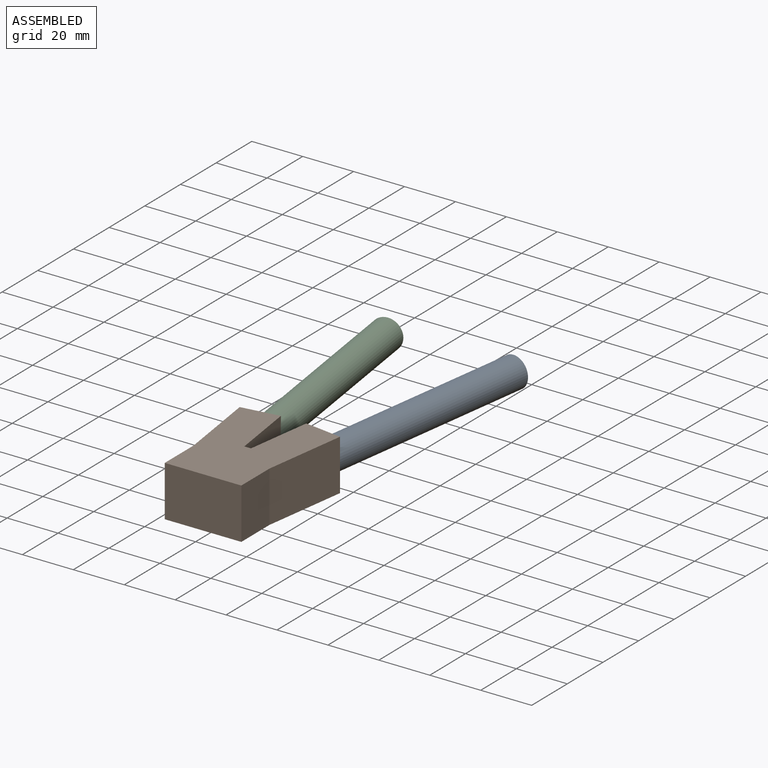
[diagram: assembled view]
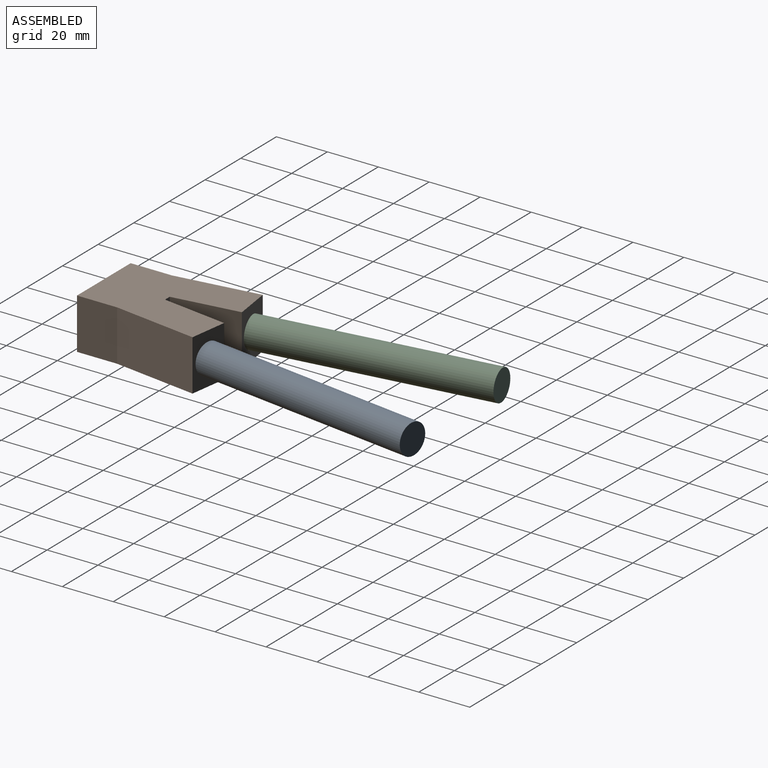
[diagram: assembled view, second angle]
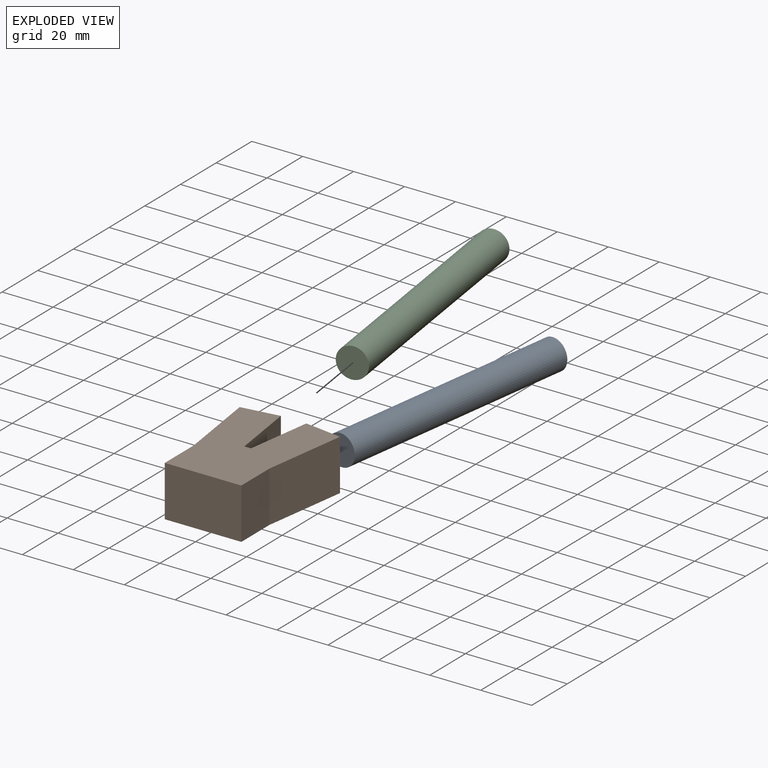
[diagram: exploded view]
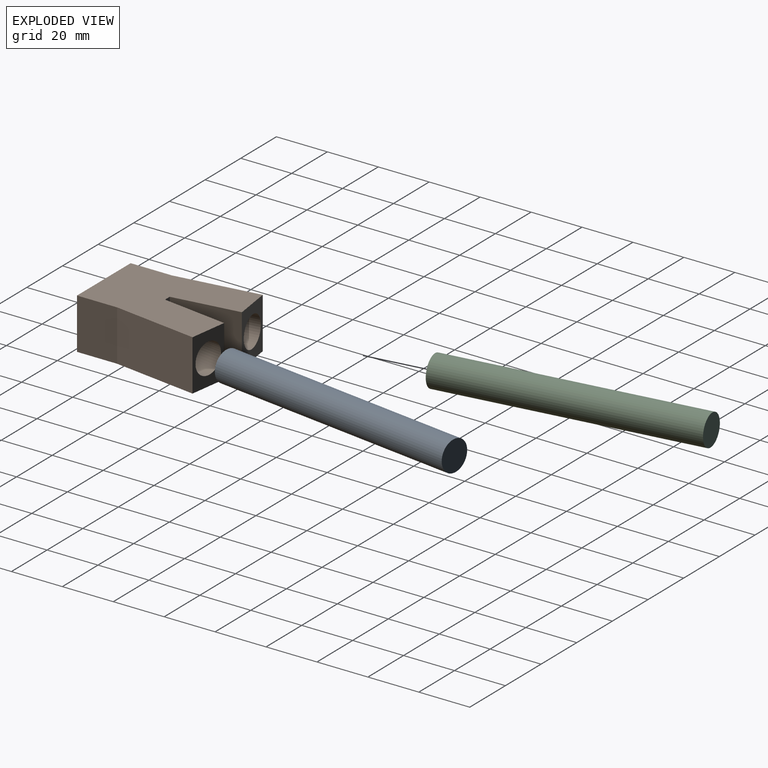
[diagram: exploded view, second angle]
ASSEMBLY  parts=3 mates=2
PART A: 3 faces, bbox 12x12x100 mm
  f0: cylinder r=6mm len=100mm, axis (0,0,-1), area 3769.9mm2, adj f1,f2
  f1: plane 12x12mm, normal (0,0,1), area 113.1mm2, adj f0
  f2: plane 12x12mm, normal (0,0,-1), area 113.1mm2, adj f0
PART B: 17 faces, bbox 39.4x50.7x20 mm
  f0: plane 20x14.7mm, normal (0.14,0.99,0), area 183.9mm2, adj f1,f10,f11,f12,f15
  f1: plane 25.78x20mm, normal (-0.99,0.14,0), area 520.9mm2, adj f0,f2,f11,f12
  f2: plane 20x2.63mm, normal (0,1,0), area 52.7mm2, adj f1,f3,f11,f12
  f3: plane 25.78x20mm, normal (0.99,0.14,0), area 520.9mm2, adj f2,f4,f11,f12
  f4: plane 20x14.7mm, normal (-0.14,0.99,0), area 181.9mm2, adj f3,f5,f11,f12,f13
  f5: plane 32.9x20mm, normal (-0.99,-0.14,0), area 664.7mm2, adj f4,f6,f11,f12
  f6: plane 20x0.07mm, normal (0,1,0), area 1.4mm2, adj f5,f7,f11,f12
  f7: plane 20x15.75mm, normal (-1,0,0), area 315mm2, adj f6,f8,f11,f12
  f8: plane 30.07x20mm, normal (0,-1,0), area 601.4mm2, adj f7,f9,f11,f12
  f9: plane 20x15.75mm, normal (1,0,0), area 315mm2, adj f8,f10,f11,f12
  f10: plane 32.9x20mm, normal (0.99,-0.14,0), area 664.7mm2, adj f0,f9,f11,f12
  f11: plane 50.75x39.4mm, normal (0,0,1), area 1504.1mm2, adj f0,f1,f2,f3,f4,f5,f6,f7
  f12: plane 50.75x39.4mm, normal (0,0,-1), area 1504.1mm2, adj f0,f1,f2,f3,f4,f5,f6,f7
  f13: cylinder r=6.05mm len=13.4mm, axis (-0.14,0.99,0), area 380.3mm2, adj f4,f14
  f14: plane 12.1x11.98mm, normal (-0.14,0.99,0), area 115.1mm2, adj f13
  f15: cylinder r=6mm len=13.29mm, axis (0.14,0.99,0), area 377mm2, adj f0,f16
  f16: plane 12x11.88mm, normal (0.14,0.99,0), area 113.1mm2, adj f15
PART C: same geometry as A
PLACE A rot(axis=(-0.99,0.07,-0.07),90.3deg) t=(10.94,24.05,10)mm
PLACE B at identity fixed
PLACE C rot(axis=(0.99,0.07,0.07),90.3deg) t=(-25.08,123.05,10)mm
MATE planar C.f0 <-> B.f13  axis (-0.14,0.99,0) through (-10.94,24.05,10)mm
MATE planar A.f0 <-> B.f15  axis (-0.14,-0.99,0) through (10.94,24.05,10)mm
